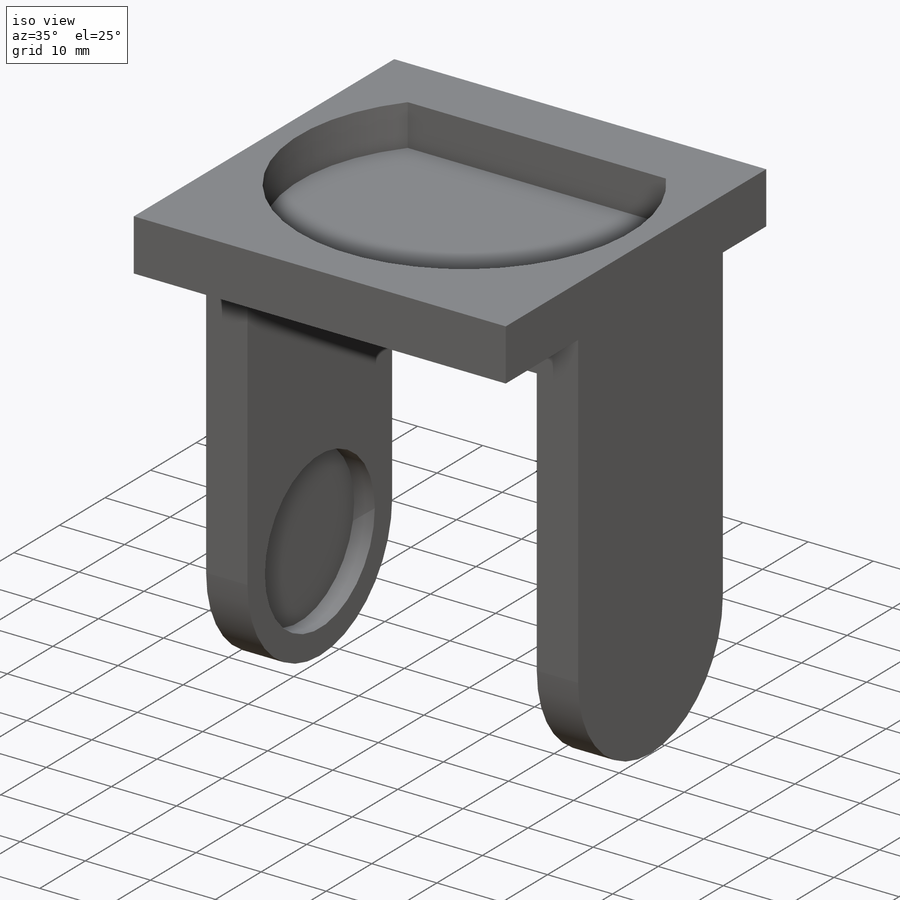
[diagram: iso view]
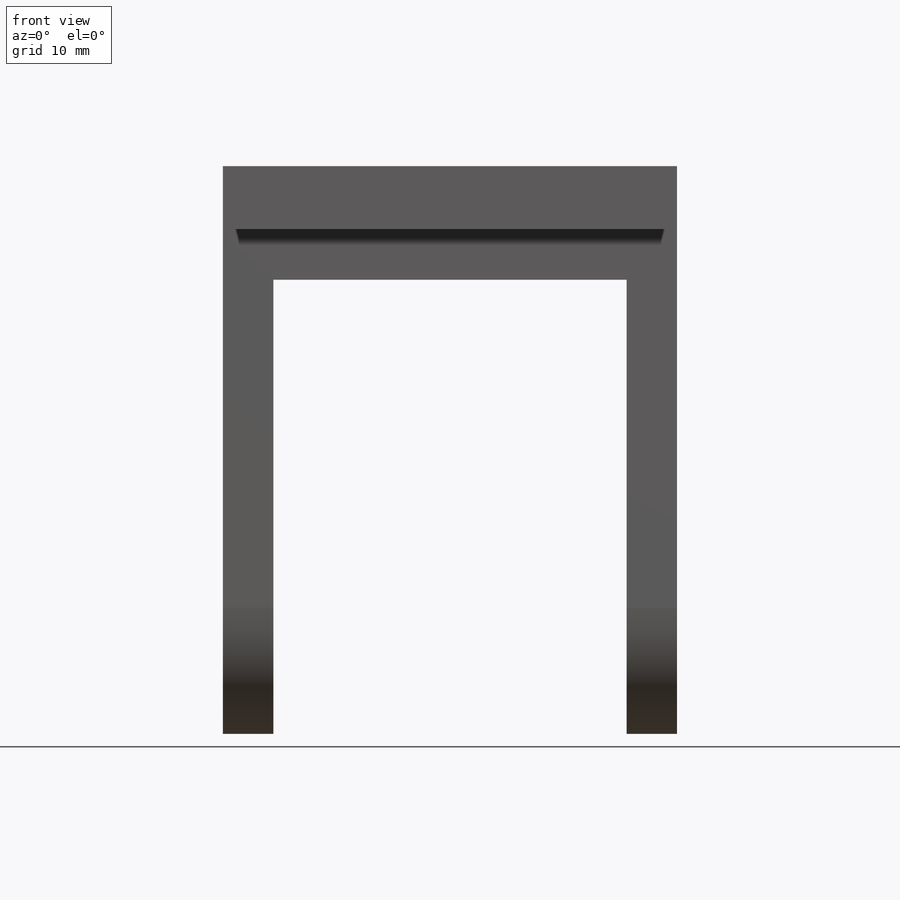
[diagram: front view]
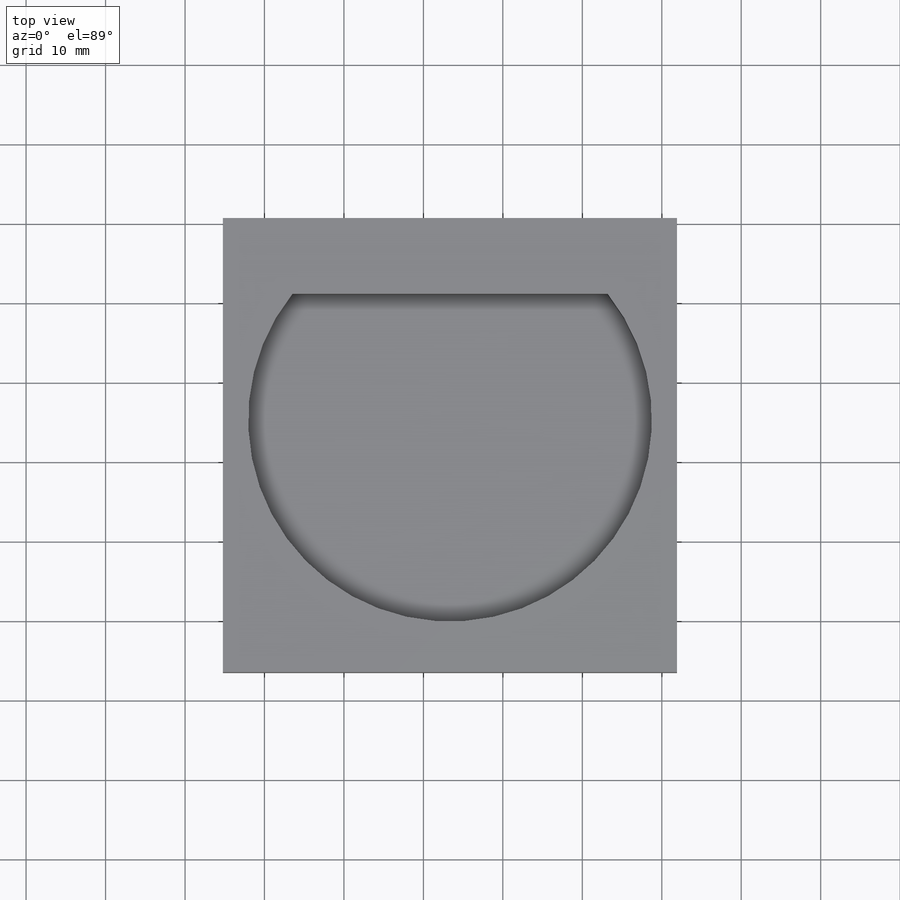
[diagram: top view]
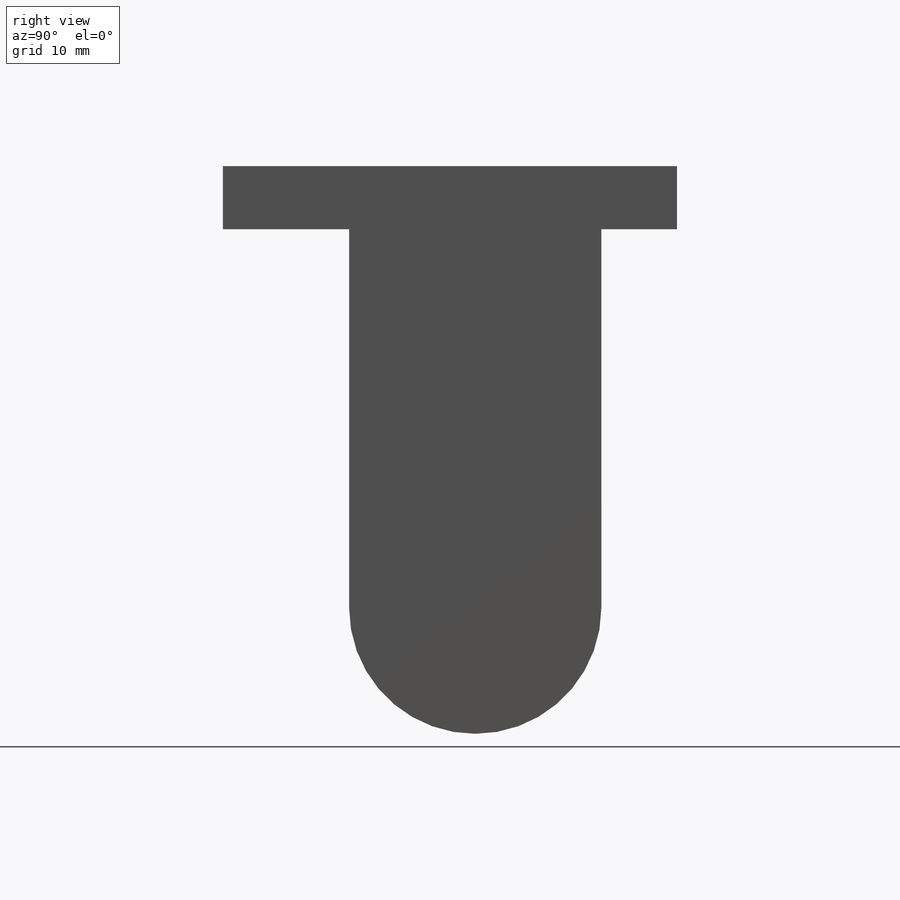
[diagram: right view]
SOLIDWORKS PART (.sldprt)
format: sldprt  version: not decoded by parser v0  size: 197,120 bytes
history: native  units: mm
features: sketch x4, fillet x4, extrude x3, material x1, cut_extrude x1 (+13 scaffold rows collapsed)
feature tree (26):
  scaffold x13  (default folders/planes/origin — collapsed)
  material  "Material <not specified>"
  sketch  "Sketch1"  dims[D1=6.35mm]
  extrude  "Boss-Extrude1"  Depth=31.75mm
  sketch  "Sketch2"  dims[D1=15.875mm]
  cut_extrude  "Cut-Extrude1"  Depth=3.175mm
  fillet  "Fillet2"  Radius=15.875mm
  fillet  "Fillet3"  Radius=15.875mm
  fillet  "Fillet4"  Radius=15.875mm
  fillet  "Fillet5"  Radius=15.875mm
  sketch  "Sketch3"  dims[D1=41.275mm]
  extrude  "Boss-Extrude2"  Depth=1.5875mm
  sketch  "Sketch4"  dims[D1=31.75mm]
  extrude  "Boss-Extrude3"  Depth=7.9375mm
decode coverage: 12 of 12 modeling features carry decoded parameters
note: suppression state not decoded; provenance and decode notes live in map.json
